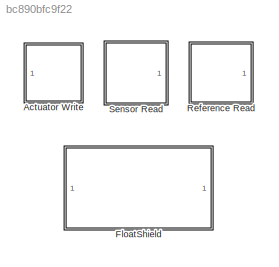
MODEL slx_bc890bfc9f22
KIND library
CONFIG AbsTol = auto
CONFIG EnableMultiTasking = off
CONFIG FixedStep = auto
CONFIG MaxStep = auto
CONFIG MinStep = auto
CONFIG RelTol = 1e-3
CONFIG SampleTimeConstraint = Unconstrained
CONFIG Solver = VariableStepAuto
CONFIG SolverName = VariableStepAuto
CONFIG StartTime = 0.0
CONFIG StopTime = 10.0
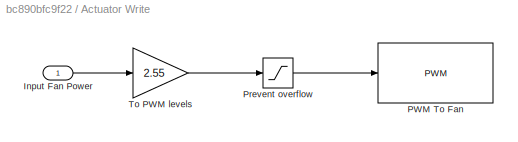
BLOCK [SubSystem] Actuator Write
  Ports = [1]
  RequestExecContextInheritance = off
BLOCK [Inport] Actuator Write/Input Fan Power
  IconDisplay = Port number
BLOCK [Reference] Actuator Write/PWM To Fan  REF=arduinolib/PWM
  Ports = [1]
  SourceBlock = arduinolib/PWM
  SourceProductBaseCode = ARDUINO
  SourceProductName = Simulink Support Package for Arduino Hardware
  SourceType = Arduino PWM
BLOCK [Saturate] Actuator Write/Prevent overflow
  InputPortMap = u0
  LowerLimit = 0
  Ports = [1, 1]
  UpperLimit = 255
BLOCK [Gain] Actuator Write/To PWM levels
  Gain = 2.55
  OutDataTypeStr = Inherit: Inherit via internal rule
  ParamDataTypeStr = Inherit: Inherit via internal rule
  SaturateOnIntegerOverflow = off
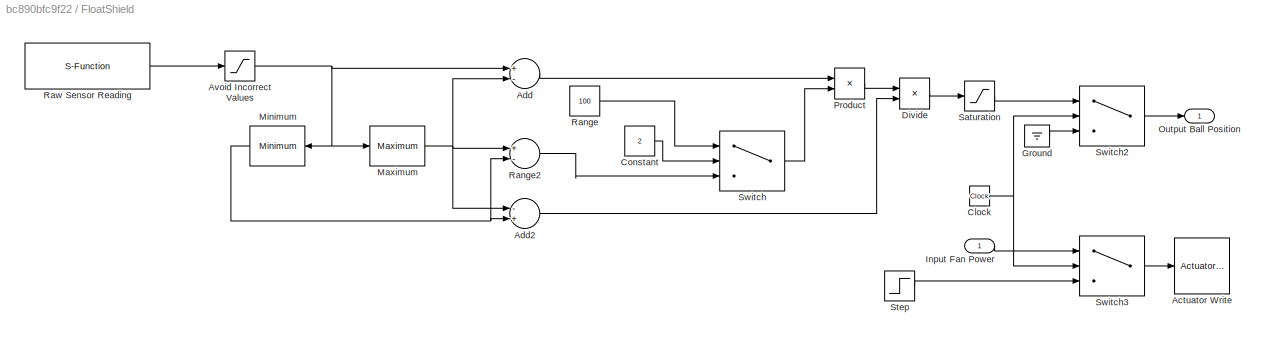
BLOCK [SubSystem] FloatShield
  Ports = [1, 1]
  RequestExecContextInheritance = off
BLOCK [Reference] FloatShield/Actuator Write  REF=$bdroot/Actuator Write
  Ports = [1]
  SourceBlock = $bdroot/Actuator Write
BLOCK [Sum] FloatShield/Add
  InputSameDT = off
  Inputs = +-
  OutDataTypeStr = Inherit: Inherit via internal rule
  Ports = [2, 1]
  SaturateOnIntegerOverflow = off
BLOCK [Sum] FloatShield/Add2
  InputSameDT = off
  Inputs = -+
  OutDataTypeStr = Inherit: Inherit via internal rule
  Ports = [2, 1]
  SaturateOnIntegerOverflow = off
BLOCK [Saturate] FloatShield/Avoid Incorrect Values
  InputPortMap = u0
  LowerLimit = 15
  Ports = [1, 1]
  UpperLimit = 345
BLOCK [Clock] FloatShield/Clock
BLOCK [Constant] FloatShield/Constant
  SampleTime = Ts
  Value = 2
BLOCK [Product] FloatShield/Divide
  InputSameDT = off
  Inputs = */
  OutDataTypeStr = Inherit: Inherit via internal rule
  Ports = [2, 1]
  RndMeth = Floor
  SaturateOnIntegerOverflow = off
BLOCK [Ground] FloatShield/Ground
BLOCK [Inport] FloatShield/Input Fan Power
  IconDisplay = Port number
BLOCK [Reference] FloatShield/Maximum  REF=dspstat3/Maximum
  Ports = [1, 1]
  SourceBlock = dspstat3/Maximum
  SourceProductBaseCode = DS
  SourceProductName = DSP System Toolbox
  SourceType = Maximum
  UserDataPersistent = on
BLOCK [Reference] FloatShield/Minimum  REF=dspstat3/Minimum
  Ports = [1, 1]
  SourceBlock = dspstat3/Minimum
  SourceProductBaseCode = DS
  SourceProductName = DSP System Toolbox
  SourceType = Minimum
  UserDataPersistent = on
BLOCK [Outport] FloatShield/Output Ball Position
  IconDisplay = Port number
BLOCK [Product] FloatShield/Product
  InputSameDT = off
  OutDataTypeStr = Inherit: Inherit via internal rule
  Ports = [2, 1]
  RndMeth = Floor
  SaturateOnIntegerOverflow = off
BLOCK [Constant] FloatShield/Range
  SampleTime = Ts
  Value = 100
BLOCK [Sum] FloatShield/Range2
  InputSameDT = off
  Inputs = +-
  OutDataTypeStr = Inherit: Inherit via internal rule
  Ports = [2, 1]
  SaturateOnIntegerOverflow = off
BLOCK [S-Function] FloatShield/Raw Sensor Reading
  EnableBusSupport = off
  FunctionName = PololuVL53L0X
  Ports = [0, 1]
  SFcnIsStateOwnerBlock = off
  SFunctionDeploymentMode = off
  SFunctionModules = 'PololuVL53L0X_wrapper'
BLOCK [Saturate] FloatShield/Saturation
  InputPortMap = u0
  LowerLimit = SatMin
  Ports = [1, 1]
  UpperLimit = SatMax
BLOCK [Step] FloatShield/Step
  After = 100
  SampleTime = Ts
  Time = round((Tcal/2)/Ts)*Ts
BLOCK [Switch] FloatShield/Switch
  Criteria = u2 > Threshold
  InputSameDT = off
  SaturateOnIntegerOverflow = off
  Threshold = OutRadio
BLOCK [Switch] FloatShield/Switch2
  Criteria = u2 > Threshold
  InputSameDT = off
  SaturateOnIntegerOverflow = off
  Threshold = Tcal
BLOCK [Switch] FloatShield/Switch3
  Criteria = u2 > Threshold
  InputSameDT = off
  SaturateOnIntegerOverflow = off
  Threshold = Tcal
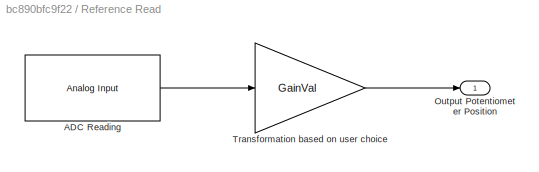
BLOCK [SubSystem] Reference Read
  Ports = [0, 1]
  RequestExecContextInheritance = off
BLOCK [Reference] Reference Read/ADC Reading  REF=arduinolib/Analog Input
  Ports = [0, 1]
  SourceBlock = arduinolib/Analog Input
  SourceProductBaseCode = ARDUINO
  SourceProductName = Simulink Support Package for Arduino Hardware
  SourceType = Arduino Analog Input
BLOCK [Outport] Reference Read/Output Potentiometer Position 
  IconDisplay = Port number
BLOCK [Gain] Reference Read/Transformation based on user choice
  Gain = GainVal
  OutDataTypeStr = Inherit: Inherit via internal rule
  ParamDataTypeStr = double
  SaturateOnIntegerOverflow = off
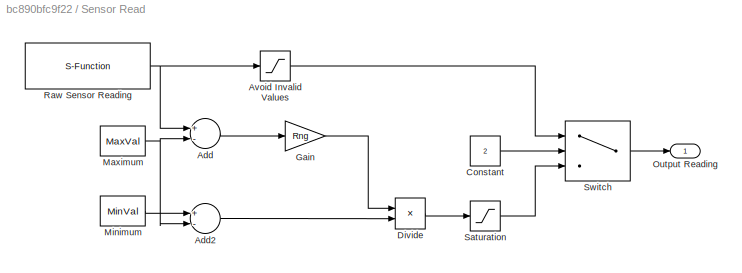
BLOCK [SubSystem] Sensor Read
  Ports = [0, 1]
  RequestExecContextInheritance = off
BLOCK [Sum] Sensor Read/Add
  InputSameDT = off
  Inputs = +-
  OutDataTypeStr = Inherit: Inherit via internal rule
  Ports = [2, 1]
  SaturateOnIntegerOverflow = off
BLOCK [Sum] Sensor Read/Add2
  InputSameDT = off
  Inputs = +-
  OutDataTypeStr = Inherit: Inherit via internal rule
  Ports = [2, 1]
  SaturateOnIntegerOverflow = off
BLOCK [Saturate] Sensor Read/Avoid Invalid Values
  InputPortMap = u0
  LowerLimit = 10
  Ports = [1, 1]
  UpperLimit = 350
BLOCK [Constant] Sensor Read/Constant
  SampleTime = Ts
  Value = 2
BLOCK [Product] Sensor Read/Divide
  InputSameDT = off
  Inputs = */
  OutDataTypeStr = Inherit: Inherit via internal rule
  Ports = [2, 1]
  RndMeth = Floor
  SaturateOnIntegerOverflow = off
BLOCK [Gain] Sensor Read/Gain
  Gain = Rng
  OutDataTypeStr = Inherit: Inherit via internal rule
  ParamDataTypeStr = Inherit: Inherit via internal rule
  SaturateOnIntegerOverflow = off
BLOCK [Constant] Sensor Read/Maximum
  SampleTime = Ts
  Value = MaxVal
BLOCK [Constant] Sensor Read/Minimum
  SampleTime = Ts
  Value = MinVal
BLOCK [Outport] Sensor Read/Output Reading
  IconDisplay = Port number
  SampleTime = Ts
BLOCK [S-Function] Sensor Read/Raw Sensor Reading
  EnableBusSupport = off
  FunctionName = PololuVL53L0X
  Ports = [0, 1]
  SFcnIsStateOwnerBlock = off
  SFunctionDeploymentMode = off
  SFunctionModules = 'PololuVL53L0X_wrapper'
BLOCK [Saturate] Sensor Read/Saturation
  InputPortMap = u0
  LowerLimit = SatMin
  Ports = [1, 1]
  UpperLimit = SatMax
BLOCK [Switch] Sensor Read/Switch
  Criteria = u2 > Threshold
  InputSameDT = off
  SaturateOnIntegerOverflow = off
  Threshold = OutRadio
LINE Actuator Write/Input Fan Power:1 -> Actuator Write/To PWM levels:1
LINE Actuator Write/Prevent overflow:1 -> Actuator Write/PWM To Fan:1
LINE Actuator Write/To PWM levels:1 -> Actuator Write/Prevent overflow:1
LINE FloatShield/Add2:1 -> FloatShield/Divide:2
LINE FloatShield/Add:1 -> FloatShield/Product:1
NET FloatShield/Avoid Incorrect Values:1 -> FloatShield/Add:1, FloatShield/Maximum:1, FloatShield/Minimum:1
NET FloatShield/Clock:1 -> FloatShield/Switch2:2, FloatShield/Switch3:2
LINE FloatShield/Constant:1 -> FloatShield/Switch:2
LINE FloatShield/Divide:1 -> FloatShield/Saturation:1
LINE FloatShield/Ground:1 -> FloatShield/Switch2:3
LINE FloatShield/Input Fan Power:1 -> FloatShield/Switch3:1
NET FloatShield/Maximum:1 -> FloatShield/Add2:1, FloatShield/Add:2, FloatShield/Range2:1
NET FloatShield/Minimum:1 -> FloatShield/Add2:2, FloatShield/Range2:2
LINE FloatShield/Product:1 -> FloatShield/Divide:1
LINE FloatShield/Range2:1 -> FloatShield/Switch:3
LINE FloatShield/Range:1 -> FloatShield/Switch:1
LINE FloatShield/Raw Sensor Reading:1 -> FloatShield/Avoid Incorrect Values:1
LINE FloatShield/Saturation:1 -> FloatShield/Switch2:1
LINE FloatShield/Step:1 -> FloatShield/Switch3:3
LINE FloatShield/Switch2:1 -> FloatShield/Output Ball Position:1
LINE FloatShield/Switch3:1 -> FloatShield/Actuator Write:1
LINE FloatShield/Switch:1 -> FloatShield/Product:2
LINE Reference Read/ADC Reading:1 -> Reference Read/Transformation based on user choice:1
LINE Reference Read/Transformation based on user choice:1 -> Reference Read/Output Potentiometer Position :1
LINE Sensor Read/Add2:1 -> Sensor Read/Divide:2
LINE Sensor Read/Add:1 -> Sensor Read/Gain:1
LINE Sensor Read/Avoid Invalid Values:1 -> Sensor Read/Switch:1
LINE Sensor Read/Constant:1 -> Sensor Read/Switch:2
LINE Sensor Read/Divide:1 -> Sensor Read/Saturation:1
LINE Sensor Read/Gain:1 -> Sensor Read/Divide:1
NET Sensor Read/Maximum:1 -> Sensor Read/Add2:2, Sensor Read/Add:2
LINE Sensor Read/Minimum:1 -> Sensor Read/Add2:1
NET Sensor Read/Raw Sensor Reading:1 -> Sensor Read/Add:1, Sensor Read/Avoid Invalid Values:1
LINE Sensor Read/Saturation:1 -> Sensor Read/Switch:3
LINE Sensor Read/Switch:1 -> Sensor Read/Output Reading:1
note: NET lines group one-source signal fan-out (src -> all destinations, sorted); 1:1 wires keep LINE
